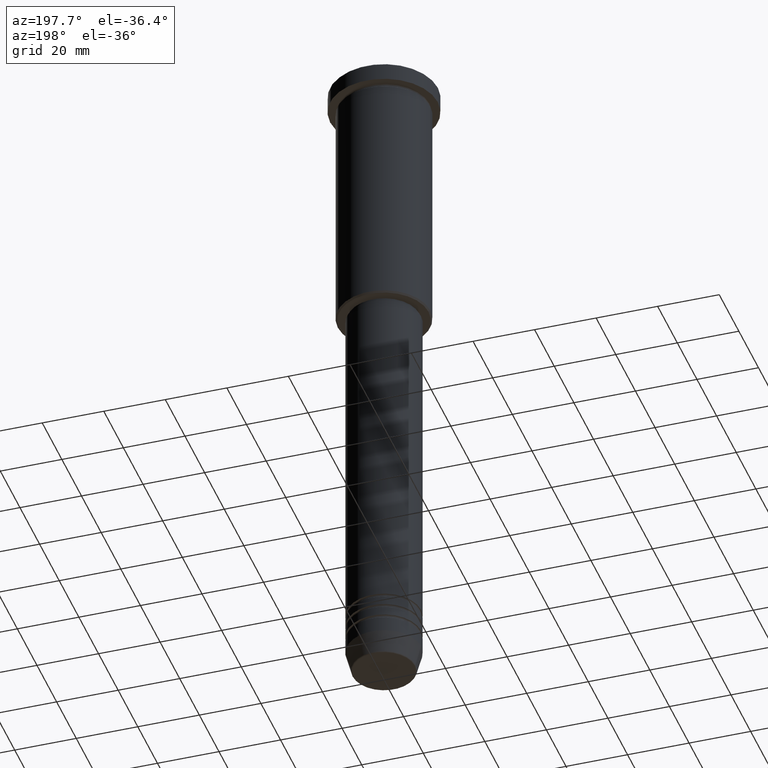
[diagram: clean part render]
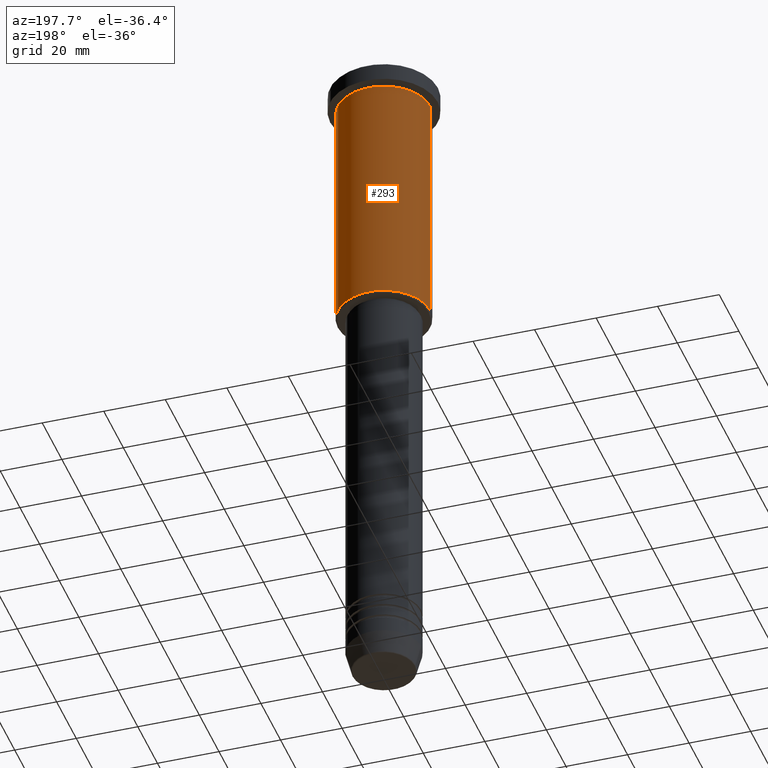
[diagram: same view with one face highlighted and labeled with its STEP entity id]
A machine part, auxiliary view. The second image highlights one B-rep face of the part: STEP entity #293.
In plain terms, the highlighted cylindrical surface (partial cylindrical patch) has radius 15 mm, axis along (-0, -0, 1).
Its self-contained STEP definition (entity closure, byte-faithful):
#18 = ORIENTED_EDGE ( 'NONE', *, *, #36, .T. ) ;
#36 = EDGE_CURVE ( 'NONE', #671, #1087, #659, .T. ) ;
#87 = ORIENTED_EDGE ( 'NONE', *, *, #237, .F. ) ;
#131 = CARTESIAN_POINT ( 'NONE',  ( -15.00000000000000000, 1.836970198721029589E-15, -6.999999999999995559 ) ) ;
#175 = FACE_OUTER_BOUND ( 'NONE', #1102, .T. ) ;
#237 = EDGE_CURVE ( 'NONE', #623, #342, #877, .T. ) ;
#244 = CYLINDRICAL_SURFACE ( 'NONE', #964, 15.00000000000000000 ) ;
#252 = CARTESIAN_POINT ( 'NONE',  ( 15.00000000000000000, 0.000000000000000000, -6.999999999999995559 ) ) ;
#290 = CIRCLE ( 'NONE', #426, 15.00000000000000000 ) ;
#293 = ADVANCED_FACE ( 'NONE', ( #175 ), #244, .T. ) ;
#342 = VERTEX_POINT ( 'NONE', #252 ) ;
#352 = ORIENTED_EDGE ( 'NONE', *, *, #587, .T. ) ;
#404 = VECTOR ( 'NONE', #757, 1000.000000000000000 ) ;
#426 = AXIS2_PLACEMENT_3D ( 'NONE', #922, #838, #470 ) ;
#455 = DIRECTION ( 'NONE',  ( -0.000000000000000000, -0.000000000000000000, 1.000000000000000000 ) ) ;
#470 = DIRECTION ( 'NONE',  ( 1.000000000000000000, 0.000000000000000000, 0.000000000000000000 ) ) ;
#587 = EDGE_CURVE ( 'NONE', #623, #671, #811, .T. ) ;
#623 = VERTEX_POINT ( 'NONE', #958 ) ;
#626 = CARTESIAN_POINT ( 'NONE',  ( -15.00000000000000000, 1.836970198721029589E-15, -85.50000000000005684 ) ) ;
#652 = ORIENTED_EDGE ( 'NONE', *, *, #899, .F. ) ;
#659 = LINE ( 'NONE', #763, #404 ) ;
#671 = VERTEX_POINT ( 'NONE', #626 ) ;
#709 = CARTESIAN_POINT ( 'NONE',  ( 0.000000000000000000, 0.000000000000000000, 0.000000000000000000 ) ) ;
#757 = DIRECTION ( 'NONE',  ( -0.000000000000000000, -0.000000000000000000, 1.000000000000000000 ) ) ;
#763 = CARTESIAN_POINT ( 'NONE',  ( -15.00000000000000000, 1.836970198721029589E-15, 0.000000000000000000 ) ) ;
#809 = VECTOR ( 'NONE', #1066, 1000.000000000000000 ) ;
#811 = CIRCLE ( 'NONE', #1079, 15.00000000000000000 ) ;
#814 = DIRECTION ( 'NONE',  ( 1.000000000000000000, 0.000000000000000000, 0.000000000000000000 ) ) ;
#838 = DIRECTION ( 'NONE',  ( -0.000000000000000000, -0.000000000000000000, 1.000000000000000000 ) ) ;
#876 = DIRECTION ( 'NONE',  ( -1.000000000000000000, 0.000000000000000000, 0.000000000000000000 ) ) ;
#877 = LINE ( 'NONE', #1045, #809 ) ;
#899 = EDGE_CURVE ( 'NONE', #342, #1087, #290, .T. ) ;
#922 = CARTESIAN_POINT ( 'NONE',  ( 0.000000000000000000, 0.000000000000000000, -6.999999999999995559 ) ) ;
#958 = CARTESIAN_POINT ( 'NONE',  ( 15.00000000000000000, 0.000000000000000000, -85.50000000000005684 ) ) ;
#964 = AXIS2_PLACEMENT_3D ( 'NONE', #709, #455, #814 ) ;
#966 = CARTESIAN_POINT ( 'NONE',  ( 0.000000000000000000, 0.000000000000000000, -85.50000000000005684 ) ) ;
#1045 = CARTESIAN_POINT ( 'NONE',  ( 15.00000000000000000, 0.000000000000000000, 0.000000000000000000 ) ) ;
#1066 = DIRECTION ( 'NONE',  ( -0.000000000000000000, -0.000000000000000000, 1.000000000000000000 ) ) ;
#1079 = AXIS2_PLACEMENT_3D ( 'NONE', #966, #1149, #876 ) ;
#1087 = VERTEX_POINT ( 'NONE', #131 ) ;
#1102 = EDGE_LOOP ( 'NONE', ( #352, #18, #652, #87 ) ) ;
#1149 = DIRECTION ( 'NONE',  ( -0.000000000000000000, -0.000000000000000000, 1.000000000000000000 ) ) ;